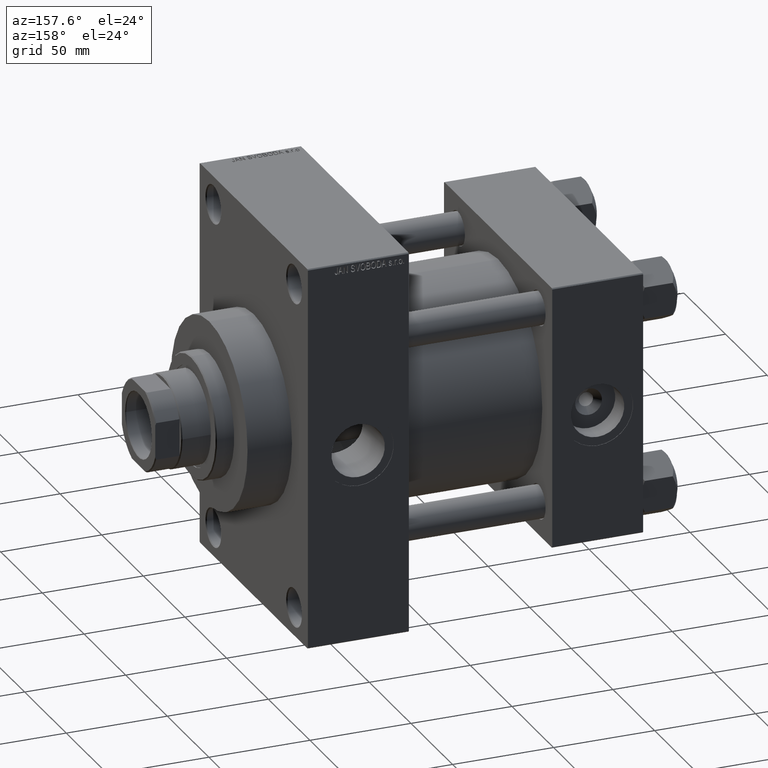
[diagram: clean part render]
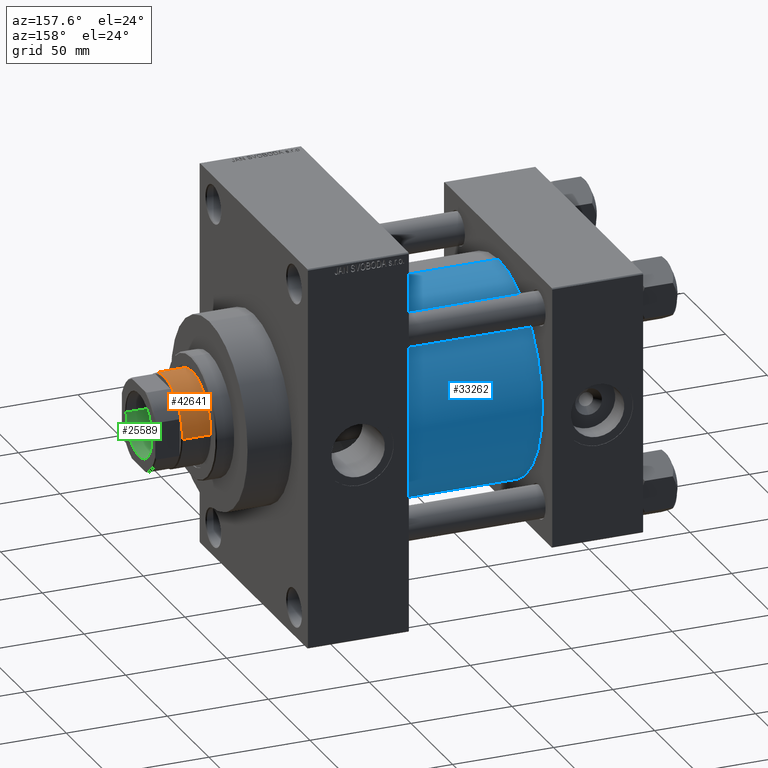
[diagram: same view with three faces highlighted in distinct colors, each labeled with its STEP entity id]
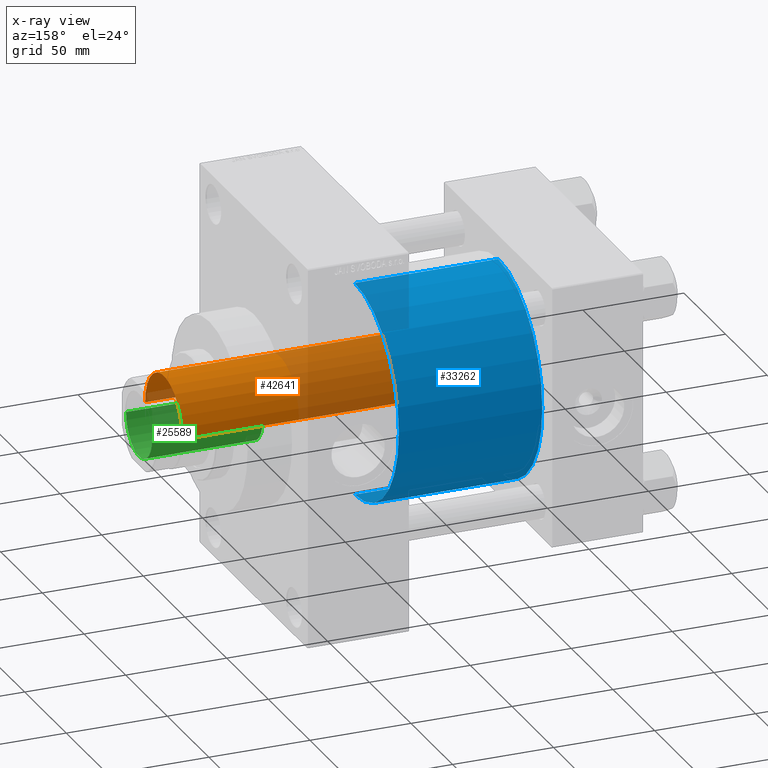
[diagram: x-ray of the same camera — body ghosted, the three highlighted faces saturated]
A machine part, auxiliary view with three faces highlighted in distinct colors.
The next image is the same camera in x-ray (body ghosted, the three faces saturated) — at least one of them is partly hidden behind the body in this view.
Their STEP definitions:

[orange] entity #42641 — the highlighted cylindrical surface (partial cylindrical patch) has radius 22.5 mm, axis along (-1, 0, 0).
#2229 = VECTOR ( 'NONE', #6888, 1000.000000000000000 ) ;
#3782 = CIRCLE ( 'NONE', #18416, 22.50000000000000355 ) ;
#3900 = ORIENTED_EDGE ( 'NONE', *, *, #46603, .T. ) ;
#4553 = AXIS2_PLACEMENT_3D ( 'NONE', #14497, #9968, #13589 ) ;
#5127 = VERTEX_POINT ( 'NONE', #28433 ) ;
#5227 = CARTESIAN_POINT ( 'NONE',  ( 22.50000000000000355, 2.755455298081545172E-15, 165.4999999999999716 ) ) ;
#6888 = DIRECTION ( 'NONE',  ( -0.000000000000000000, -0.000000000000000000, -1.000000000000000000 ) ) ;
#7647 = VERTEX_POINT ( 'NONE', #22415 ) ;
#9554 = ORIENTED_EDGE ( 'NONE', *, *, #42418, .F. ) ;
#9968 = DIRECTION ( 'NONE',  ( -0.000000000000000000, -0.000000000000000000, -1.000000000000000000 ) ) ;
#10573 = EDGE_CURVE ( 'NONE', #7647, #23852, #14130, .T. ) ;
#13589 = DIRECTION ( 'NONE',  ( -1.000000000000000000, 0.000000000000000000, 0.000000000000000000 ) ) ;
#14130 = LINE ( 'NONE', #47389, #2229 ) ;
#14497 = CARTESIAN_POINT ( 'NONE',  ( 0.000000000000000000, 0.000000000000000000, 166.0000000000000000 ) ) ;
#15348 = CIRCLE ( 'NONE', #34580, 22.50000000000000355 ) ;
#17354 = DIRECTION ( 'NONE',  ( 1.000000000000000000, 0.000000000000000000, 0.000000000000000000 ) ) ;
#18416 = AXIS2_PLACEMENT_3D ( 'NONE', #38089, #21436, #17354 ) ;
#18464 = CARTESIAN_POINT ( 'NONE',  ( 22.50000000000000355, 2.755455298081545172E-15, 166.0000000000000000 ) ) ;
#20842 = CARTESIAN_POINT ( 'NONE',  ( 0.000000000000000000, 0.000000000000000000, 51.00000000000000000 ) ) ;
#21436 = DIRECTION ( 'NONE',  ( 0.000000000000000000, 0.000000000000000000, -1.000000000000000000 ) ) ;
#22133 = VECTOR ( 'NONE', #40638, 1000.000000000000000 ) ;
#22415 = CARTESIAN_POINT ( 'NONE',  ( -22.50000000000000355, 0.000000000000000000, 165.4999999999999716 ) ) ;
#23852 = VERTEX_POINT ( 'NONE', #38388 ) ;
#24449 = DIRECTION ( 'NONE',  ( 0.000000000000000000, 0.000000000000000000, 1.000000000000000000 ) ) ;
#28433 = CARTESIAN_POINT ( 'NONE',  ( 22.50000000000000355, 2.755455298081545172E-15, 51.00000000000000000 ) ) ;
#32192 = EDGE_LOOP ( 'NONE', ( #9554, #41138, #38644, #3900 ) ) ;
#34580 = AXIS2_PLACEMENT_3D ( 'NONE', #20842, #24449, #39401 ) ;
#38089 = CARTESIAN_POINT ( 'NONE',  ( 0.000000000000000000, 0.000000000000000000, 165.4999999999999716 ) ) ;
#38388 = CARTESIAN_POINT ( 'NONE',  ( -22.50000000000000355, 0.000000000000000000, 51.00000000000000000 ) ) ;
#38644 = ORIENTED_EDGE ( 'NONE', *, *, #10573, .T. ) ;
#39401 = DIRECTION ( 'NONE',  ( 1.000000000000000000, 0.000000000000000000, 0.000000000000000000 ) ) ;
#40289 = CYLINDRICAL_SURFACE ( 'NONE', #4553, 22.50000000000000355 ) ;
#40638 = DIRECTION ( 'NONE',  ( -0.000000000000000000, -0.000000000000000000, -1.000000000000000000 ) ) ;
#40872 = LINE ( 'NONE', #18464, #22133 ) ;
#41138 = ORIENTED_EDGE ( 'NONE', *, *, #46064, .T. ) ;
#42418 = EDGE_CURVE ( 'NONE', #45438, #5127, #40872, .T. ) ;
#42641 = ADVANCED_FACE ( 'NONE', ( #46854 ), #40289, .T. ) ;
#45438 = VERTEX_POINT ( 'NONE', #5227 ) ;
#46064 = EDGE_CURVE ( 'NONE', #45438, #7647, #3782, .T. ) ;
#46603 = EDGE_CURVE ( 'NONE', #23852, #5127, #15348, .T. ) ;
#46854 = FACE_OUTER_BOUND ( 'NONE', #32192, .T. ) ;
#47389 = CARTESIAN_POINT ( 'NONE',  ( -22.50000000000000355, 0.000000000000000000, 166.0000000000000000 ) ) ;

[blue] entity #33262 — the highlighted cylindrical surface (partial cylindrical patch) has radius 53 mm, axis along (-1, -0, -0).
#2440 = FACE_OUTER_BOUND ( 'NONE', #9438, .T. ) ;
#3052 = ORIENTED_EDGE ( 'NONE', *, *, #24442, .T. ) ;
#4458 = VECTOR ( 'NONE', #27962, 1000.000000000000000 ) ;
#4789 = DIRECTION ( 'NONE',  ( -1.000000000000000000, -0.000000000000000000, -0.000000000000000000 ) ) ;
#8898 = EDGE_CURVE ( 'NONE', #39774, #28839, #9890, .T. ) ;
#9438 = EDGE_LOOP ( 'NONE', ( #46108, #29409, #3052, #41161 ) ) ;
#9890 = LINE ( 'NONE', #13275, #4458 ) ;
#10138 = DIRECTION ( 'NONE',  ( 0.000000000000000000, 0.000000000000000000, -1.000000000000000000 ) ) ;
#13275 = CARTESIAN_POINT ( 'NONE',  ( 115.9999999999999858, 3.888542821515762466E-15, -53.00000000000000711 ) ) ;
#13819 = VECTOR ( 'NONE', #4789, 1000.000000000000000 ) ;
#15500 = CIRCLE ( 'NONE', #35537, 53.00000000000000711 ) ;
#16137 = EDGE_CURVE ( 'NONE', #16812, #42243, #19032, .T. ) ;
#16493 = CARTESIAN_POINT ( 'NONE',  ( 115.9999999999999858, -2.602085213965210642E-15, 53.00000000000000711 ) ) ;
#16673 = DIRECTION ( 'NONE',  ( 0.000000000000000000, 0.000000000000000000, 1.000000000000000000 ) ) ;
#16812 = VERTEX_POINT ( 'NONE', #16493 ) ;
#17627 = DIRECTION ( 'NONE',  ( -1.000000000000000000, -0.000000000000000000, -0.000000000000000000 ) ) ;
#19032 = LINE ( 'NONE', #22640, #13819 ) ;
#21185 = CARTESIAN_POINT ( 'NONE',  ( 45.00000000000000000, -2.602085213965210642E-15, 53.00000000000000711 ) ) ;
#22640 = CARTESIAN_POINT ( 'NONE',  ( 115.9999999999999858, -2.602085213965210642E-15, 53.00000000000000711 ) ) ;
#24131 = DIRECTION ( 'NONE',  ( 1.000000000000000000, 0.000000000000000000, 0.000000000000000000 ) ) ;
#24442 = EDGE_CURVE ( 'NONE', #28839, #42243, #15500, .T. ) ;
#24607 = CYLINDRICAL_SURFACE ( 'NONE', #25811, 53.00000000000000711 ) ;
#25811 = AXIS2_PLACEMENT_3D ( 'NONE', #42460, #17627, #16673 ) ;
#27726 = CARTESIAN_POINT ( 'NONE',  ( 115.9999999999999858, -2.602085213965210642E-15, 0.000000000000000000 ) ) ;
#27962 = DIRECTION ( 'NONE',  ( -1.000000000000000000, -0.000000000000000000, -0.000000000000000000 ) ) ;
#28839 = VERTEX_POINT ( 'NONE', #45110 ) ;
#29409 = ORIENTED_EDGE ( 'NONE', *, *, #8898, .T. ) ;
#29545 = DIRECTION ( 'NONE',  ( 1.000000000000000000, -0.000000000000000000, 0.000000000000000000 ) ) ;
#30459 = AXIS2_PLACEMENT_3D ( 'NONE', #27726, #24131, #10138 ) ;
#33262 = ADVANCED_FACE ( 'NONE', ( #2440 ), #24607, .T. ) ;
#34780 = EDGE_CURVE ( 'NONE', #39774, #16812, #46537, .T. ) ;
#35537 = AXIS2_PLACEMENT_3D ( 'NONE', #47649, #29545, #36797 ) ;
#36797 = DIRECTION ( 'NONE',  ( 0.000000000000000000, 0.000000000000000000, 1.000000000000000000 ) ) ;
#39774 = VERTEX_POINT ( 'NONE', #43654 ) ;
#41161 = ORIENTED_EDGE ( 'NONE', *, *, #16137, .F. ) ;
#42243 = VERTEX_POINT ( 'NONE', #21185 ) ;
#42460 = CARTESIAN_POINT ( 'NONE',  ( 115.9999999999999858, -2.602085213965210642E-15, 0.000000000000000000 ) ) ;
#43654 = CARTESIAN_POINT ( 'NONE',  ( 115.9999999999999858, 3.888542821515762466E-15, -53.00000000000000711 ) ) ;
#45110 = CARTESIAN_POINT ( 'NONE',  ( 45.00000000000000000, 3.888542821515762466E-15, -53.00000000000000711 ) ) ;
#46108 = ORIENTED_EDGE ( 'NONE', *, *, #34780, .F. ) ;
#46537 = CIRCLE ( 'NONE', #30459, 53.00000000000000711 ) ;
#47649 = CARTESIAN_POINT ( 'NONE',  ( 45.00000000000000000, -2.602085213965210642E-15, 0.000000000000000000 ) ) ;

[green] entity #25589 — the highlighted cylindrical surface (edge-blend (fillet) strip) has radius 15.75 mm, axis along (1, 0, 0).
#7340 = LINE ( 'NONE', #22062, #36458 ) ;
#7682 = ORIENTED_EDGE ( 'NONE', *, *, #39843, .F. ) ;
#8187 = CYLINDRICAL_SURFACE ( 'NONE', #43244, 15.74999999999999289 ) ;
#9501 = VERTEX_POINT ( 'NONE', #19452 ) ;
#10478 = ORIENTED_EDGE ( 'NONE', *, *, #29352, .T. ) ;
#14246 = DIRECTION ( 'NONE',  ( -0.000000000000000000, -0.000000000000000000, 1.000000000000000000 ) ) ;
#15669 = FACE_OUTER_BOUND ( 'NONE', #18013, .T. ) ;
#16576 = LINE ( 'NONE', #42364, #32268 ) ;
#18013 = EDGE_LOOP ( 'NONE', ( #19942, #7682, #10478, #21844 ) ) ;
#19452 = CARTESIAN_POINT ( 'NONE',  ( -15.74999999999998934, 1.928818708657080161E-15, 123.0000000000000284 ) ) ;
#19942 = ORIENTED_EDGE ( 'NONE', *, *, #43230, .F. ) ;
#21844 = ORIENTED_EDGE ( 'NONE', *, *, #22862, .T. ) ;
#22062 = CARTESIAN_POINT ( 'NONE',  ( 15.74999999999999289, 0.000000000000000000, 178.0000000000000284 ) ) ;
#22862 = EDGE_CURVE ( 'NONE', #31045, #33514, #45476, .T. ) ;
#22895 = DIRECTION ( 'NONE',  ( 1.000000000000000000, 0.000000000000000000, 0.000000000000000000 ) ) ;
#25082 = CARTESIAN_POINT ( 'NONE',  ( 0.000000000000000000, 0.000000000000000000, 123.0000000000000284 ) ) ;
#25589 = ADVANCED_FACE ( 'NONE', ( #15669 ), #8187, .F. ) ;
#26505 = CARTESIAN_POINT ( 'NONE',  ( 0.000000000000000000, 0.000000000000000000, 178.0000000000000284 ) ) ;
#29352 = EDGE_CURVE ( 'NONE', #29856, #31045, #7340, .T. ) ;
#29856 = VERTEX_POINT ( 'NONE', #46318 ) ;
#31045 = VERTEX_POINT ( 'NONE', #42204 ) ;
#32268 = VECTOR ( 'NONE', #42126, 1000.000000000000000 ) ;
#32863 = CARTESIAN_POINT ( 'NONE',  ( 0.000000000000000000, 0.000000000000000000, 177.6999999999999886 ) ) ;
#33392 = DIRECTION ( 'NONE',  ( -0.000000000000000000, -0.000000000000000000, 1.000000000000000000 ) ) ;
#33514 = VERTEX_POINT ( 'NONE', #33870 ) ;
#33870 = CARTESIAN_POINT ( 'NONE',  ( -15.74999999999999289, 1.928818708657080556E-15, 177.6999999999999886 ) ) ;
#34381 = CIRCLE ( 'NONE', #45913, 15.74999999999998934 ) ;
#35760 = DIRECTION ( 'NONE',  ( 0.000000000000000000, 0.000000000000000000, 1.000000000000000000 ) ) ;
#36458 = VECTOR ( 'NONE', #33392, 1000.000000000000000 ) ;
#38085 = DIRECTION ( 'NONE',  ( -0.000000000000000000, -0.000000000000000000, 1.000000000000000000 ) ) ;
#39843 = EDGE_CURVE ( 'NONE', #29856, #9501, #34381, .T. ) ;
#42126 = DIRECTION ( 'NONE',  ( -0.000000000000000000, -0.000000000000000000, 1.000000000000000000 ) ) ;
#42204 = CARTESIAN_POINT ( 'NONE',  ( 15.74999999999999289, 0.000000000000000000, 177.6999999999999886 ) ) ;
#42364 = CARTESIAN_POINT ( 'NONE',  ( -15.74999999999999289, 1.928818708657080556E-15, 178.0000000000000284 ) ) ;
#43230 = EDGE_CURVE ( 'NONE', #9501, #33514, #16576, .T. ) ;
#43237 = DIRECTION ( 'NONE',  ( 1.000000000000000000, 0.000000000000000000, 0.000000000000000000 ) ) ;
#43244 = AXIS2_PLACEMENT_3D ( 'NONE', #26505, #38085, #22895 ) ;
#45476 = CIRCLE ( 'NONE', #47034, 15.74999999999999289 ) ;
#45913 = AXIS2_PLACEMENT_3D ( 'NONE', #25082, #14246, #46556 ) ;
#46318 = CARTESIAN_POINT ( 'NONE',  ( 15.74999999999998934, 0.000000000000000000, 123.0000000000000284 ) ) ;
#46556 = DIRECTION ( 'NONE',  ( 1.000000000000000000, 0.000000000000000000, 0.000000000000000000 ) ) ;
#47034 = AXIS2_PLACEMENT_3D ( 'NONE', #32863, #35760, #43237 ) ;